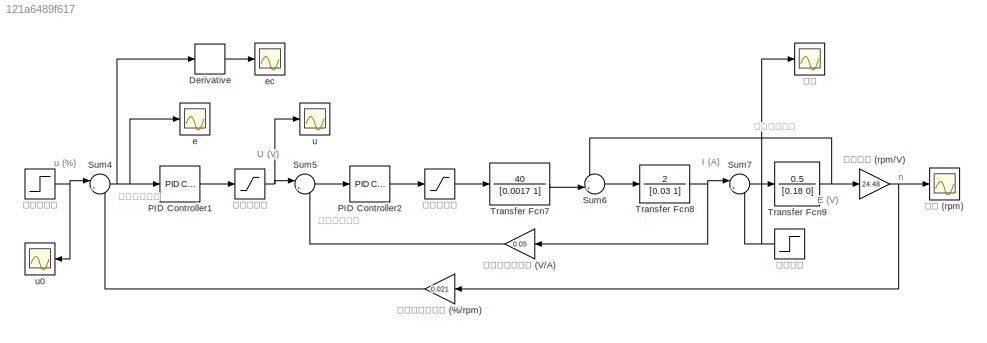
MODEL slx_121a6489f617
KIND model
CONFIG AbsTol = auto
CONFIG EnableMultiTasking = off
CONFIG FixedStep = auto
CONFIG MaxStep = auto
CONFIG MinStep = auto
CONFIG RelTol = 1e-3
CONFIG SampleTimeConstraint = Unconstrained
CONFIG SolverName = VariableStepAuto
CONFIG StartTime = 0.0
CONFIG StopTime = 5
BLOCK [Derivative] Derivative
BLOCK [Reference] PID Controller1  REF=pid_lib/PID Controller
  Ports = [1, 1]
  SourceBlock = pid_lib/PID Controller
  SourceProductBaseCode = SL
  SourceType = PID 1dof
BLOCK [Reference] PID Controller2  REF=pid_lib/PID Controller
  Ports = [1, 1]
  SourceBlock = pid_lib/PID Controller
  SourceProductBaseCode = SL
  SourceType = PID 1dof
BLOCK [Sum] Sum4
  Inputs = |+-
  Ports = [2, 1]
BLOCK [Sum] Sum5
  Inputs = |+-
  Ports = [2, 1]
BLOCK [Sum] Sum6
  Inputs = -+|
  Ports = [2, 1]
BLOCK [Sum] Sum7
  Inputs = |+-
  Ports = [2, 1]
BLOCK [TransferFcn] Transfer Fcn7
  Denominator = [0.0017 1]
  Numerator = 40
BLOCK [TransferFcn] Transfer Fcn8
  Denominator = [0.03 1]
  Numerator = 2
BLOCK [TransferFcn] Transfer Fcn9
  Denominator = [0.18 0]
  Numerator = 0.5
BLOCK [Scope] e
  Floating = off
  NumInputPorts = 1
  Ports = [1]
  ScopeSpecificationString = Simulink.scopes.TimeScopeBlockCfg('CurrentConfiguration', extmgr.ConfigurationSet(extmgr.Configuration('Core','General UI',true),extmgr.Configuration('Core','Source UI',true),extmgr.Configuration('Sources','WiredSimulink',true,'DataLoggingVariableName','ScopeData1'),extmgr.Configuration('Visuals','Time Domain',true,'SerializedDisplays',{struct('MinYLimReal','-10.28504','MaxYLimReal','23.8178','YLa...<+1438ch>
BLOCK [Scope] ec
  Floating = off
  NumInputPorts = 1
  Ports = [1]
  ScopeSpecificationString = Simulink.scopes.TimeScopeBlockCfg('CurrentConfiguration', extmgr.ConfigurationSet(extmgr.Configuration('Core','General UI',true),extmgr.Configuration('Core','Source UI',true),extmgr.Configuration('Sources','WiredSimulink',true,'DataLoggingVariableName','ScopeData2'),extmgr.Configuration('Visuals','Time Domain',true,'SerializedDisplays',{struct('MinYLimReal','-72.18321','MaxYLimReal','1700.72201','...<+1456ch>
BLOCK [Scope] u
  Floating = off
  NumInputPorts = 1
  Ports = [1]
  ScopeSpecificationString = Simulink.scopes.TimeScopeBlockCfg('CurrentConfiguration', extmgr.ConfigurationSet(extmgr.Configuration('Core','General UI',true),extmgr.Configuration('Core','Source UI',true),extmgr.Configuration('Sources','WiredSimulink',true,'DataLoggingVariableName','ScopeData4'),extmgr.Configuration('Visuals','Time Domain',true,'SerializedDisplays',{struct('MinYLimReal','-10.28504','MaxYLimReal','23.8178','YLa...<+1440ch>
BLOCK [Scope] u0
  Floating = off
  NumInputPorts = 1
  Ports = [1]
  ScopeSpecificationString = Simulink.scopes.TimeScopeBlockCfg('CurrentConfiguration', extmgr.ConfigurationSet(extmgr.Configuration('Core','General UI',true),extmgr.Configuration('Core','Source UI',true),extmgr.Configuration('Sources','WiredSimulink',true),extmgr.Configuration('Visuals','Time Domain',true,'SerializedDisplays',{struct('MinYLimReal','176.78741','MaxYLimReal','213.70889','YLabelReal','','MinYLimMag','176.78741',...<+1412ch>
BLOCK [Gain] 电势常数 (rpm//V)
  Gain = 24.48
BLOCK [Scope] 电流
  Floating = off
  NumInputPorts = 1
  Ports = [1]
  ScopeSpecificationString = Simulink.scopes.TimeScopeBlockCfg('CurrentConfiguration', extmgr.ConfigurationSet(extmgr.Configuration('Core','General UI',true),extmgr.Configuration('Core','Source UI',true),extmgr.Configuration('Sources','WiredSimulink',true,'DataLoggingVariableName','ScopeData3'),extmgr.Configuration('Visuals','Time Domain',true,'SerializedDisplays',{struct('MinYLimReal','-2.98916','MaxYLimReal','48.70313','YLa...<+1415ch>
BLOCK [Gain] 电流环测量变送 (V//A)
  Gain = 0.05
BLOCK [Saturate] 电流环限幅
  LowerLimit = -50
  UpperLimit = 50
BLOCK [Step] 负载电流
  After = 30
  SampleTime = 0
  Time = 3
BLOCK [Scope] 转速 (rpm)
  Floating = off
  NumInputPorts = 1
  Ports = [1]
  ScopeSpecificationString = Simulink.scopes.TimeScopeBlockCfg('CurrentConfiguration', extmgr.ConfigurationSet(extmgr.Configuration('Core','General UI',true),extmgr.Configuration('Core','Source UI',true),extmgr.Configuration('Sources','WiredSimulink',true,'DataLoggingVariableName','ScopeData9'),extmgr.Configuration('Visuals','Time Domain',true,'SerializedDisplays',{struct('MinYLimReal','-38.4393','MaxYLimReal','635.42383','YL...<+1427ch>
BLOCK [Gain] 速度环测量变送 (%//rpm)
  Gain = 0.021
BLOCK [Saturate] 速度环限幅
  LowerLimit = -50
  UpperLimit = 50
BLOCK [Step] 遥控器信号
  After = 10
  SampleTime = 0
ANNOTATION (root): 电枢反电动势
ANNOTATION (root): E (V)
ANNOTATION (root): I (A)
ANNOTATION (root): U (V)
ANNOTATION (root): n
ANNOTATION (root): u (%)
ANNOTATION (root): 电流环控制器
ANNOTATION (root): 速度环控制器
LINE Derivative:1 -> ec:1
LINE PID Controller1:1 -> 速度环限幅:1
LINE PID Controller2:1 -> 电流环限幅:1
NET Sum4:1 -> Derivative:1, PID Controller1:1, e:1
LINE Sum5:1 -> PID Controller2:1
LINE Sum6:1 -> Transfer Fcn8:1
LINE Sum7:1 -> Transfer Fcn9:1
LINE Transfer Fcn7:1 -> Sum6:2
NET Transfer Fcn8:1 -> Sum7:1, 电流环测量变送 (V//A):1
NET Transfer Fcn9:1 -> Sum6:1, 电势常数 (rpm//V):1
NET 电势常数 (rpm//V):1 -> 转速 (rpm):1, 速度环测量变送 (%//rpm):1
LINE 电流环测量变送 (V//A):1 -> Sum5:2
LINE 电流环限幅:1 -> Transfer Fcn7:1
NET 负载电流:1 -> Sum7:2, 电流:1
LINE 速度环测量变送 (%//rpm):1 -> Sum4:2
NET 速度环限幅:1 -> Sum5:1, u:1
NET 遥控器信号:1 -> Sum4:1, u0:1
note: NET lines group one-source signal fan-out (src -> all destinations, sorted); 1:1 wires keep LINE
